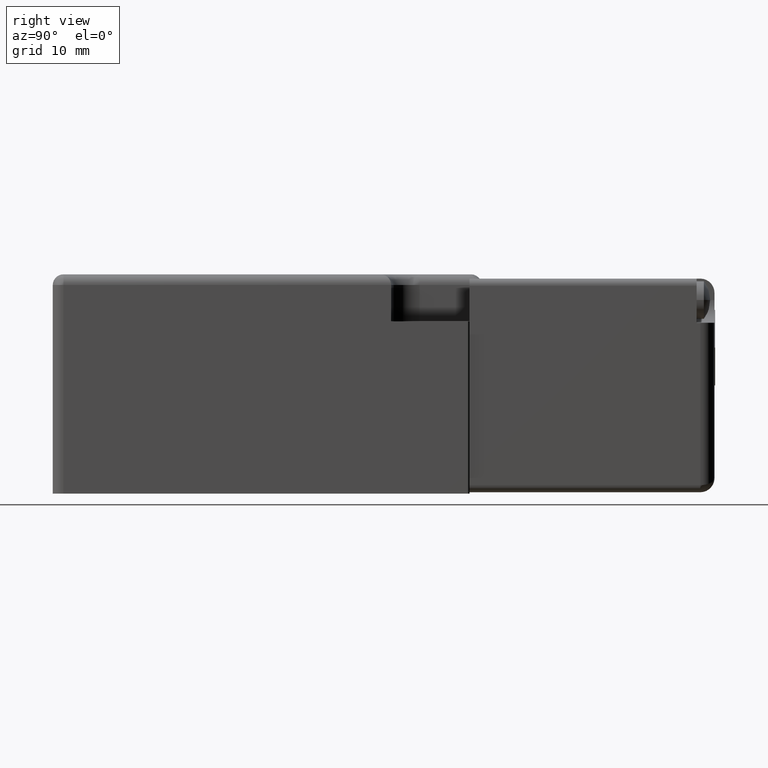
[diagram: clean part render]
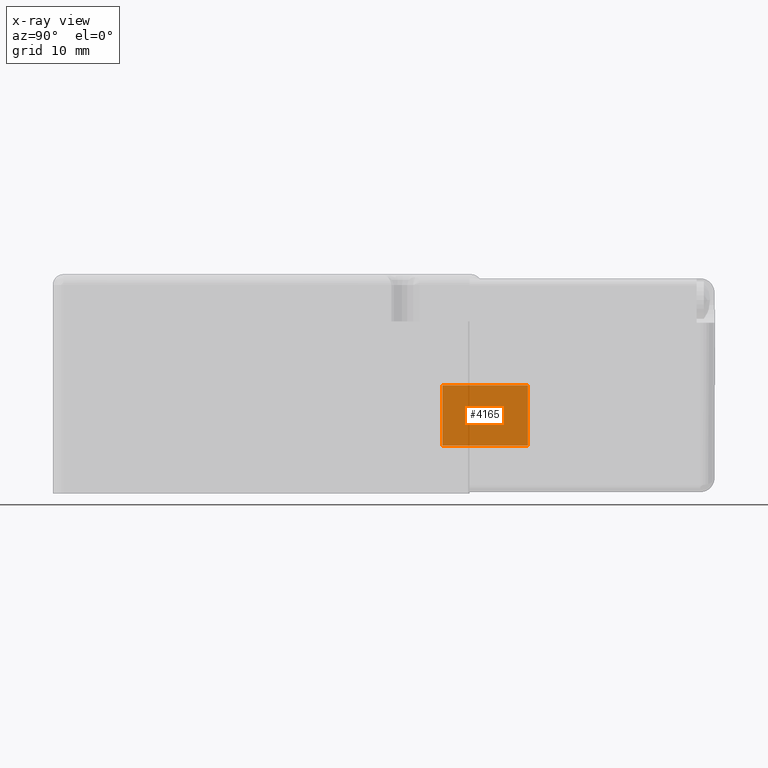
[diagram: x-ray — body ghosted, one internal face saturated and labeled with its STEP entity id]
A machine part, right view, then the same camera in x-ray: the body is ghosted and one INTERNAL B-rep face — a face not visible from any outside direction — is saturated and labeled: STEP entity #4165.
In plain terms, the highlighted planar face has unit normal (-0.7071, 0, -0.7071).
Its self-contained STEP definition (entity closure, byte-faithful):
#4038=CARTESIAN_POINT('',(-8.485281374238566,15.199999999999994,3.000000000000002));
#4039=VERTEX_POINT('',#4038);
#4046=CARTESIAN_POINT('',(-1.301043E-015,15.199999999999994,-5.485281374238567));
#4047=VERTEX_POINT('',#4046);
#4048=CARTESIAN_POINT('',(-1.609916E-015,15.199999999999994,-5.485281374238567));
#4049=DIRECTION('',(-0.707106781186547,0.0,0.707106781186548));
#4050=VECTOR('',#4049,11.999999999999998);
#4051=LINE('',#4048,#4050);
#4052=EDGE_CURVE('',#4047,#4039,#4051,.T.);
#4092=CARTESIAN_POINT('',(-8.485281374238566,3.199999999999996,3.000000000000002));
#4093=VERTEX_POINT('',#4092);
#4110=CARTESIAN_POINT('',(1.424326E-016,3.199999999999996,-5.485281374238569));
#4111=VERTEX_POINT('',#4110);
#4118=CARTESIAN_POINT('',(-2.465190E-032,3.199999999999996,-5.485281374238569));
#4119=DIRECTION('',(-0.707106781186547,0.0,0.707106781186548));
#4120=VECTOR('',#4119,11.999999999999998);
#4121=LINE('',#4118,#4120);
#4122=EDGE_CURVE('',#4111,#4093,#4121,.T.);
#4140=CARTESIAN_POINT('',(-8.485281374238566,3.199999999999996,3.000000000000002));
#4141=DIRECTION('',(0.0,1.0,0.0));
#4142=VECTOR('',#4141,11.999999999999998);
#4143=LINE('',#4140,#4142);
#4144=EDGE_CURVE('',#4093,#4039,#4143,.T.);
#4149=CARTESIAN_POINT('',(0.424264068711928,2.599999999999996,-5.909545442950497));
#4150=DIRECTION('',(-0.707106781186548,0.0,-0.707106781186547));
#4151=DIRECTION('',(-0.707106781186547,0.0,0.707106781186548));
#4152=AXIS2_PLACEMENT_3D('',#4149,#4150,#4151);
#4153=PLANE('',#4152);
#4154=ORIENTED_EDGE('',*,*,#4052,.T.);
#4155=ORIENTED_EDGE('',*,*,#4144,.F.);
#4156=ORIENTED_EDGE('',*,*,#4122,.F.);
#4157=CARTESIAN_POINT('',(1.424326E-016,3.199999999999996,-5.485281374238569));
#4158=DIRECTION('',(0.0,1.0,0.0));
#4159=VECTOR('',#4158,11.999999999999998);
#4160=LINE('',#4157,#4159);
#4161=EDGE_CURVE('',#4111,#4047,#4160,.T.);
#4162=ORIENTED_EDGE('',*,*,#4161,.T.);
#4163=EDGE_LOOP('',(#4154,#4155,#4156,#4162));
#4164=FACE_OUTER_BOUND('',#4163,.T.);
#4165=ADVANCED_FACE('',(#4164),#4153,.F.);